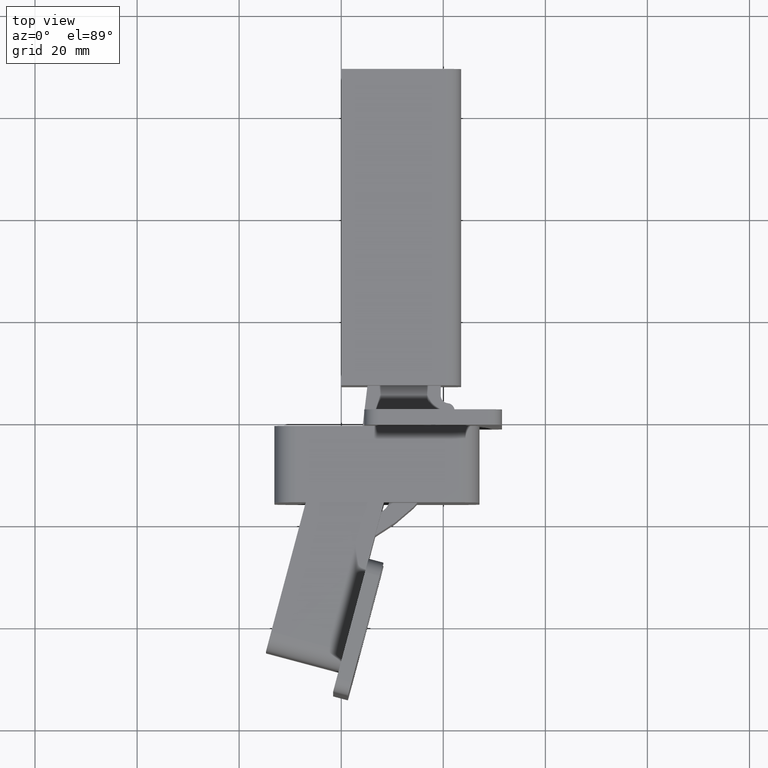
[diagram: clean part render]
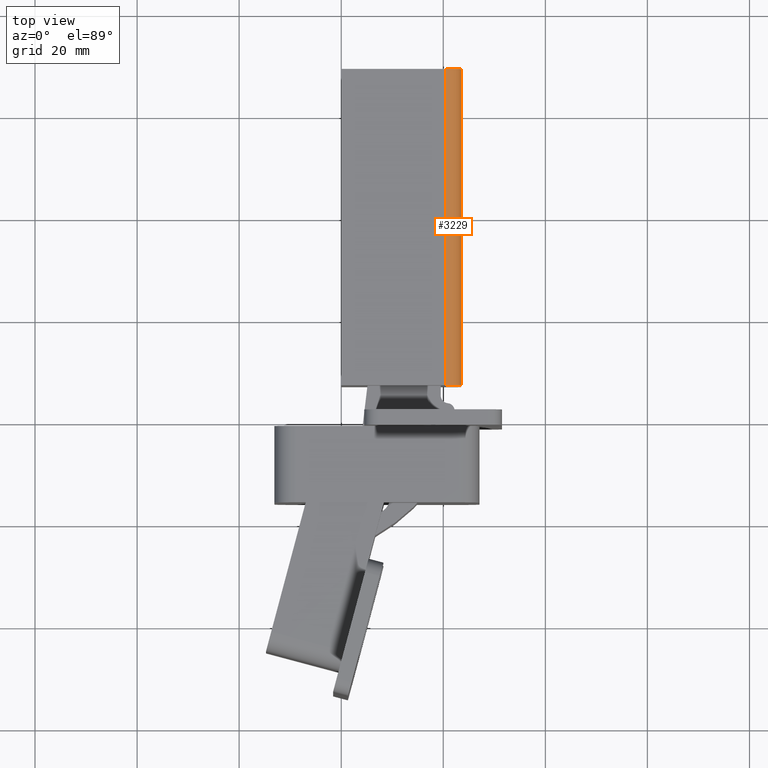
[diagram: same view with one face highlighted and labeled with its STEP entity id]
A machine part, top view. The second image highlights one B-rep face of the part: STEP entity #3229.
In plain terms, the highlighted cylindrical surface (edge-blend (fillet) strip) has radius 3 mm, axis along (0, -1, 0).
Its self-contained STEP definition (entity closure, byte-faithful):
#63=CYLINDRICAL_SURFACE('',#3456,3.);
#160=CIRCLE('',#3444,3.);
#162=CIRCLE('',#3457,3.);
#299=FACE_OUTER_BOUND('',#489,.T.);
#489=EDGE_LOOP('',(#2452,#2453,#2454,#2455));
#754=LINE('',#4981,#1102);
#756=LINE('',#4986,#1104);
#1102=VECTOR('',#4006,1.);
#1104=VECTOR('',#4012,1.);
#1422=VERTEX_POINT('',#4927);
#1423=VERTEX_POINT('',#4929);
#1439=VERTEX_POINT('',#4980);
#1440=VERTEX_POINT('',#4984);
#1789=EDGE_CURVE('',#1423,#1422,#160,.T.);
#1814=EDGE_CURVE('',#1422,#1439,#754,.T.);
#1816=EDGE_CURVE('',#1439,#1440,#162,.T.);
#1817=EDGE_CURVE('',#1440,#1423,#756,.T.);
#2452=ORIENTED_EDGE('',*,*,#1816,.T.);
#2453=ORIENTED_EDGE('',*,*,#1817,.T.);
#2454=ORIENTED_EDGE('',*,*,#1789,.T.);
#2455=ORIENTED_EDGE('',*,*,#1814,.T.);
#3229=ADVANCED_FACE('',(#299),#63,.T.);
#3444=AXIS2_PLACEMENT_3D('',#4930,#3959,#3960);
#3456=AXIS2_PLACEMENT_3D('',#4983,#4008,#4009);
#3457=AXIS2_PLACEMENT_3D('',#4985,#4010,#4011);
#3959=DIRECTION('center_axis',(0.,-1.,0.));
#3960=DIRECTION('ref_axis',(0.707106781186545,0.,0.70710678118655));
#4006=DIRECTION('',(0.,-1.,0.));
#4008=DIRECTION('center_axis',(0.,-1.,0.));
#4009=DIRECTION('ref_axis',(0.707106781186545,0.,0.70710678118655));
#4010=DIRECTION('center_axis',(0.,1.,0.));
#4011=DIRECTION('ref_axis',(0.707106781186545,0.,0.70710678118655));
#4012=DIRECTION('',(0.,1.,0.));
#4927=CARTESIAN_POINT('',(20.4999999999999,48.999999999998,11.4999999999923));
#4929=CARTESIAN_POINT('',(23.4999999999999,48.999999999998,8.49999999999232));
#4930=CARTESIAN_POINT('Origin',(20.4999999999999,48.999999999998,8.4999999999923));
#4980=CARTESIAN_POINT('',(20.4999999999999,-13.0000000000019,11.4999999999923));
#4981=CARTESIAN_POINT('',(20.4999999999999,-16.1899529436373,11.4999999999923));
#4983=CARTESIAN_POINT('Origin',(20.4999999999999,-20.1899529436373,8.4999999999923));
#4984=CARTESIAN_POINT('',(23.4999999999999,-13.0000000000019,8.49999999999232));
#4985=CARTESIAN_POINT('Origin',(20.4999999999999,-13.0000000000019,8.4999999999923));
#4986=CARTESIAN_POINT('',(23.4999999999999,-14.1899529436373,8.49999999999232));